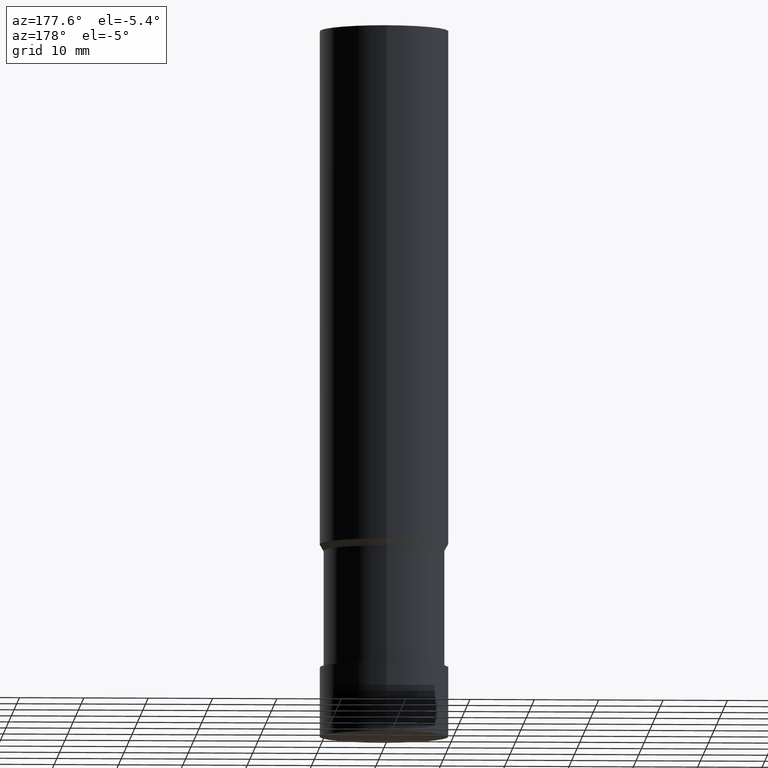
[diagram: clean part render]
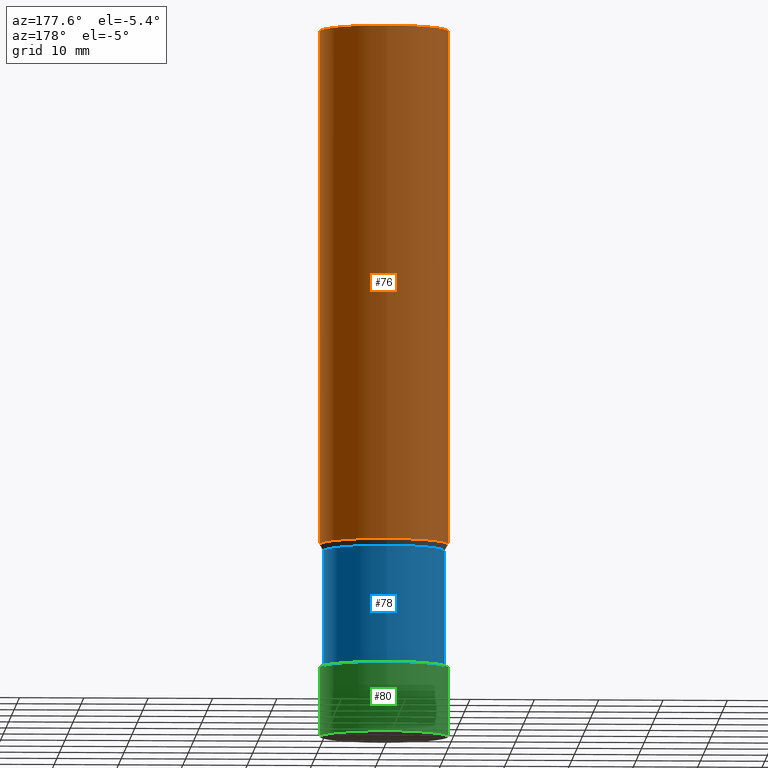
[diagram: same view with three faces highlighted in distinct colors, each labeled with its STEP entity id]
A machine part, auxiliary view with three faces highlighted in distinct colors.
Their STEP definitions:

[orange] entity #76 — the highlighted cylindrical surface (bore or boss wall) has radius 10 mm, axis along (-0, -0, 1).
#76=ADVANCED_FACE('',(#85,#86),#87,.T.);
#85=FACE_BOUND('',#104,.T.);
#86=FACE_BOUND('',#105,.T.);
#87=CYLINDRICAL_SURFACE('',#106,10.0);
#104=EDGE_LOOP('',(#125));
#105=EDGE_LOOP('',(#126));
#106=AXIS2_PLACEMENT_3D('',#127,#128,#129);
#125=ORIENTED_EDGE('',*,*,#155,.F.);
#126=ORIENTED_EDGE('',*,*,#154,.T.);
#127=CARTESIAN_POINT('',(-4.2862637973219E-015,-8.57252759464379E-015,70.000000005));
#128=DIRECTION('',(-6.12323399573677E-017,-1.22464679914735E-016,1.0));
#129=DIRECTION('',(-1.23259516440783E-032,1.0,1.22464679914735E-016));
#154=EDGE_CURVE('',#160,#160,#161,.T.);
#155=EDGE_CURVE('',#162,#162,#163,.T.);
#160=VERTEX_POINT('',#172);
#161=CIRCLE('',#173,10.0);
#162=VERTEX_POINT('',#174);
#163=CIRCLE('',#175,10.0);
#172=CARTESIAN_POINT('',(-6.73555739531044E-015,9.99999999999999,110.0));
#173=AXIS2_PLACEMENT_3D('',#184,#185,#186);
#174=CARTESIAN_POINT('',(-1.83697019933335E-015,10.0,30.00000001));
#175=AXIS2_PLACEMENT_3D('',#187,#188,#189);
#184=CARTESIAN_POINT('',(-6.73555739531044E-015,-1.34711147906209E-014,110.0));
#185=DIRECTION('',(6.12323399573677E-017,1.22464679914735E-016,-1.0));
#186=DIRECTION('',(-1.23259516440783E-032,1.0,1.22464679914735E-016));
#187=CARTESIAN_POINT('',(-1.83697019933335E-015,-3.6739403986667E-015,30.00000001));
#188=DIRECTION('',(6.12323399573677E-017,1.22464679914735E-016,-1.0));
#189=DIRECTION('',(-1.23259516440783E-032,1.0,1.22464679914735E-016));

[blue] entity #78 — the highlighted cylindrical surface (bore or boss wall) has radius 9.4 mm, axis along (-0, -0, 1).
#78=ADVANCED_FACE('',(#91,#92),#93,.T.);
#91=FACE_BOUND('',#110,.T.);
#92=FACE_BOUND('',#111,.T.);
#93=CYLINDRICAL_SURFACE('',#112,9.4);
#110=EDGE_LOOP('',(#135));
#111=EDGE_LOOP('',(#136));
#112=AXIS2_PLACEMENT_3D('',#137,#138,#139);
#135=ORIENTED_EDGE('',*,*,#157,.F.);
#136=ORIENTED_EDGE('',*,*,#156,.T.);
#137=CARTESIAN_POINT('',(-1.21759640911812E-015,-2.43519281823623E-015,19.8848583928992));
#138=DIRECTION('',(-6.12323399573677E-017,-1.22464679914735E-016,1.0));
#139=DIRECTION('',(-1.23259516440783E-032,1.0,1.22464679914735E-016));
#156=EDGE_CURVE('',#164,#164,#165,.T.);
#157=EDGE_CURVE('',#166,#166,#167,.T.);
#164=VERTEX_POINT('',#176);
#165=CIRCLE('',#177,9.4);
#166=VERTEX_POINT('',#178);
#167=CIRCLE('',#179,9.4);
#176=CARTESIAN_POINT('',(-1.77333568406329E-015,9.4,28.96076951));
#177=AXIS2_PLACEMENT_3D('',#190,#191,#192);
#178=CARTESIAN_POINT('',(-6.61857134172947E-016,9.4,10.8089472757983));
#179=AXIS2_PLACEMENT_3D('',#193,#194,#195);
#190=CARTESIAN_POINT('',(-1.77333568406329E-015,-3.54667136812658E-015,28.96076951));
#191=DIRECTION('',(6.12323399573677E-017,1.22464679914735E-016,-1.0));
#192=DIRECTION('',(-1.23259516440783E-032,1.0,1.22464679914735E-016));
#193=CARTESIAN_POINT('',(-6.61857134172947E-016,-1.32371426834589E-015,10.8089472757983));
#194=DIRECTION('',(6.12323399573677E-017,1.22464679914735E-016,-1.0));
#195=DIRECTION('',(-1.23259516440783E-032,1.0,1.22464679914735E-016));

[green] entity #80 — the highlighted cylindrical surface (bore or boss wall) has radius 10 mm, axis along (-0, -0, 1).
#80=ADVANCED_FACE('',(#97,#98),#99,.T.);
#97=FACE_BOUND('',#116,.T.);
#98=FACE_BOUND('',#117,.T.);
#99=CYLINDRICAL_SURFACE('',#118,10.0);
#116=EDGE_LOOP('',(#145));
#117=EDGE_LOOP('',(#146));
#118=AXIS2_PLACEMENT_3D('',#147,#148,#149);
#145=ORIENTED_EDGE('',*,*,#159,.F.);
#146=ORIENTED_EDGE('',*,*,#158,.T.);
#147=CARTESIAN_POINT('',(-3.30928567086473E-016,-6.61857134172947E-016,5.40447363789917));
#148=DIRECTION('',(-6.12323399573677E-017,-1.22464679914735E-016,1.0));
#149=DIRECTION('',(-1.23259516440783E-032,1.0,1.22464679914735E-016));
#158=EDGE_CURVE('',#168,#168,#169,.T.);
#159=EDGE_CURVE('',#170,#170,#171,.T.);
#168=VERTEX_POINT('',#180);
#169=CIRCLE('',#181,10.0);
#170=VERTEX_POINT('',#182);
#171=CIRCLE('',#183,10.0);
#180=CARTESIAN_POINT('',(-6.61857134172947E-016,10.0,10.8089472757983));
#181=AXIS2_PLACEMENT_3D('',#196,#197,#198);
#182=CARTESIAN_POINT('',(0.0,10.0,0.0));
#183=AXIS2_PLACEMENT_3D('',#199,#200,#201);
#196=CARTESIAN_POINT('',(-6.61857134172947E-016,-1.32371426834589E-015,10.8089472757983));
#197=DIRECTION('',(6.12323399573677E-017,1.22464679914735E-016,-1.0));
#198=DIRECTION('',(-1.23259516440783E-032,1.0,1.22464679914735E-016));
#199=CARTESIAN_POINT('',(0.0,0.0,0.0));
#200=DIRECTION('',(6.12323399573677E-017,1.22464679914735E-016,-1.0));
#201=DIRECTION('',(-1.23259516440783E-032,1.0,1.22464679914735E-016));